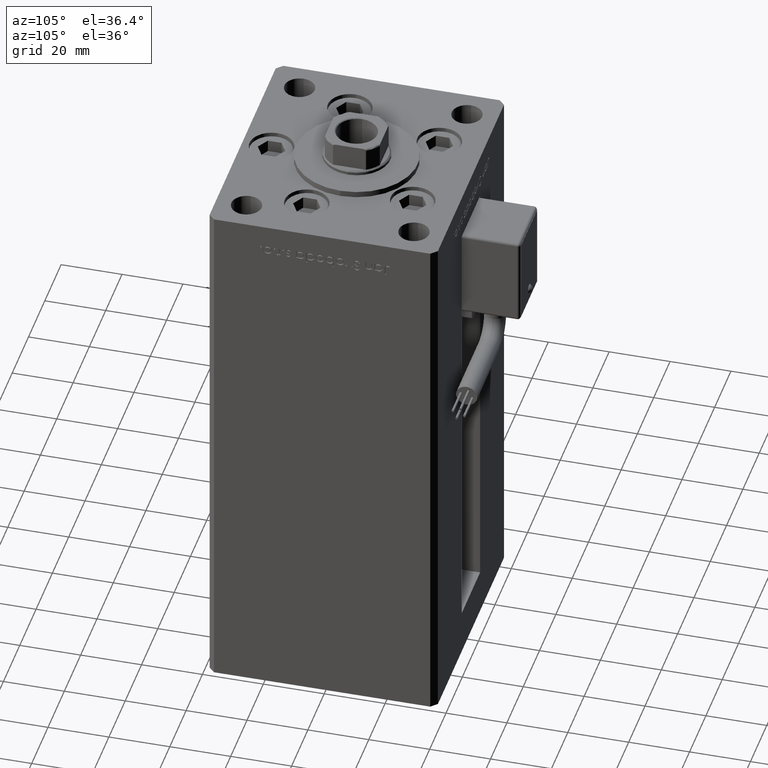
[diagram: clean part render]
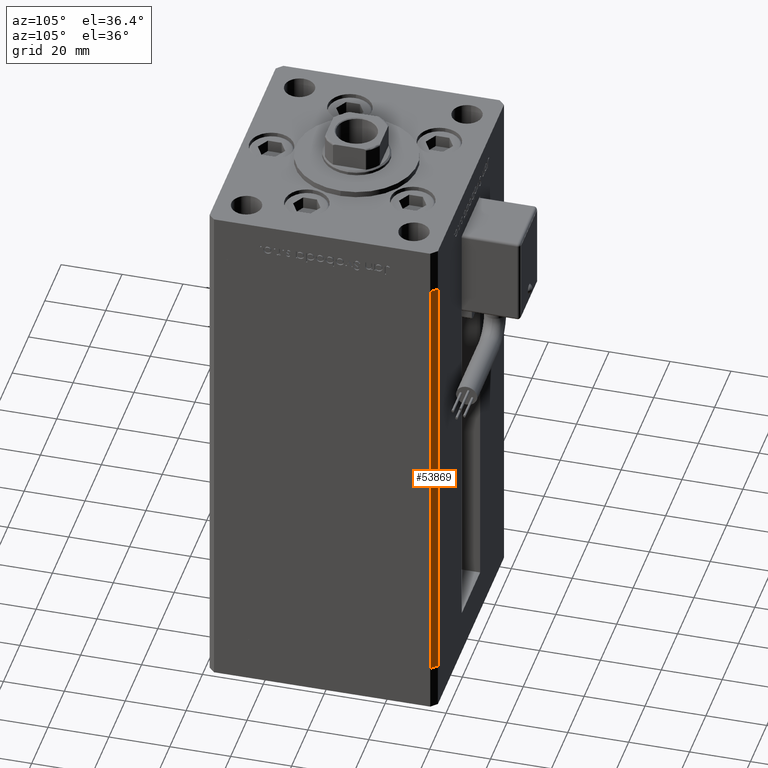
[diagram: same view with one face highlighted and labeled with its STEP entity id]
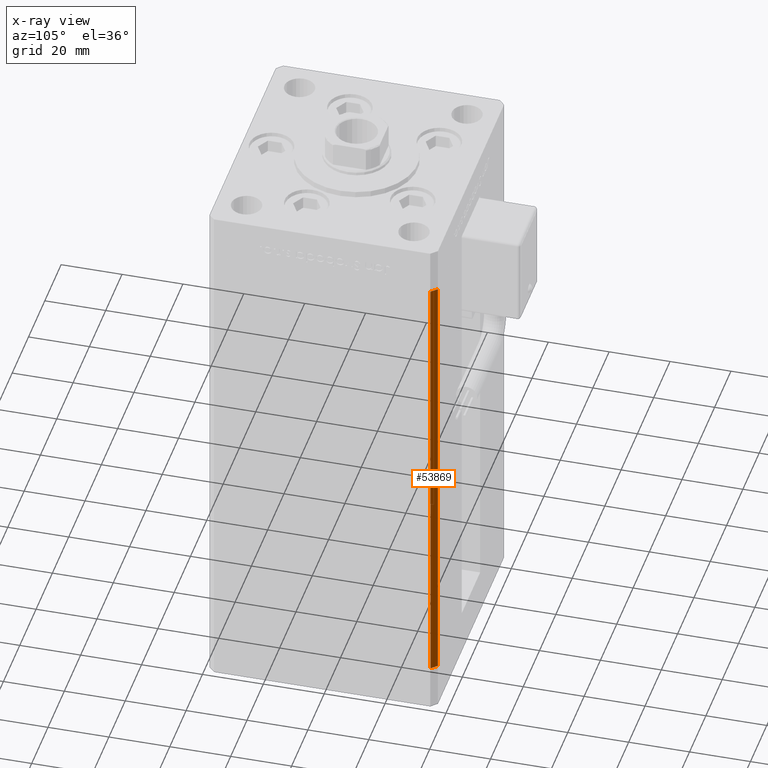
[diagram: x-ray of the same camera — body ghosted, the highlighted face saturated]
A machine part, auxiliary view. The second image highlights one B-rep face of the part: STEP entity #53869.
The next image is the same camera in x-ray: the body ghosted, the highlighted face saturated — about 0% of this face is hidden behind the body in this view.
In plain terms, the highlighted planar face has unit normal (0.7071, 0.7071, 0).
Its self-contained STEP definition (entity closure, byte-faithful):
#1923 = DIRECTION ( 'NONE',  ( 0.7071067811865500152, -0.7071067811865451302, 0.000000000000000000 ) ) ;
#3539 = FACE_OUTER_BOUND ( 'NONE', #43340, .T. ) ;
#3912 = ORIENTED_EDGE ( 'NONE', *, *, #54478, .T. ) ;
#4219 = CARTESIAN_POINT ( 'NONE',  ( 40.50000000000000000, 37.50000000000000711, 148.5000000000000000 ) ) ;
#7592 = CARTESIAN_POINT ( 'NONE',  ( 40.50000000000000000, 37.50000000000000711, 148.5000000000000000 ) ) ;
#11135 = ORIENTED_EDGE ( 'NONE', *, *, #12109, .F. ) ;
#11280 = DIRECTION ( 'NONE',  ( -0.000000000000000000, -0.000000000000000000, -1.000000000000000000 ) ) ;
#12109 = EDGE_CURVE ( 'NONE', #52536, #25490, #19099, .T. ) ;
#12866 = LINE ( 'NONE', #50219, #36794 ) ;
#16389 = CARTESIAN_POINT ( 'NONE',  ( 40.50000000000000000, 37.50000000000000711, 148.5000000000000000 ) ) ;
#19099 = LINE ( 'NONE', #7592, #53923 ) ;
#19746 = DIRECTION ( 'NONE',  ( 0.7071067811865451302, 0.7071067811865500152, -0.000000000000000000 ) ) ;
#21236 = VERTEX_POINT ( 'NONE', #52958 ) ;
#21507 = CARTESIAN_POINT ( 'NONE',  ( 42.50000000000000711, 35.50000000000001421, 148.5000000000000000 ) ) ;
#24213 = DIRECTION ( 'NONE',  ( -0.7071067811865500152, 0.7071067811865451302, 0.000000000000000000 ) ) ;
#25490 = VERTEX_POINT ( 'NONE', #54117 ) ;
#32186 = LINE ( 'NONE', #36665, #50892 ) ;
#34129 = AXIS2_PLACEMENT_3D ( 'NONE', #16389, #19746, #24213 ) ;
#36665 = CARTESIAN_POINT ( 'NONE',  ( 42.50000000000000711, 35.50000000000001421, 148.5000000000000000 ) ) ;
#36794 = VECTOR ( 'NONE', #50499, 1000.000000000000114 ) ;
#41033 = EDGE_CURVE ( 'NONE', #25490, #21236, #44079, .T. ) ;
#43340 = EDGE_LOOP ( 'NONE', ( #52843, #11135, #3912, #50016 ) ) ;
#44079 = LINE ( 'NONE', #48257, #51660 ) ;
#45020 = EDGE_CURVE ( 'NONE', #46332, #21236, #32186, .T. ) ;
#46332 = VERTEX_POINT ( 'NONE', #21507 ) ;
#48257 = CARTESIAN_POINT ( 'NONE',  ( 40.50000000000000000, 37.50000000000000711, 0.000000000000000000 ) ) ;
#50016 = ORIENTED_EDGE ( 'NONE', *, *, #45020, .T. ) ;
#50219 = CARTESIAN_POINT ( 'NONE',  ( 40.50000000000000000, 37.50000000000000711, 148.5000000000000000 ) ) ;
#50424 = PLANE ( 'NONE',  #34129 ) ;
#50499 = DIRECTION ( 'NONE',  ( 0.7071067811865500152, -0.7071067811865451302, 0.000000000000000000 ) ) ;
#50892 = VECTOR ( 'NONE', #11280, 1000.000000000000000 ) ;
#51660 = VECTOR ( 'NONE', #1923, 1000.000000000000114 ) ;
#52536 = VERTEX_POINT ( 'NONE', #4219 ) ;
#52843 = ORIENTED_EDGE ( 'NONE', *, *, #41033, .F. ) ;
#52958 = CARTESIAN_POINT ( 'NONE',  ( 42.50000000000000711, 35.50000000000001421, 0.000000000000000000 ) ) ;
#53869 = ADVANCED_FACE ( 'NONE', ( #3539 ), #50424, .T. ) ;
#53923 = VECTOR ( 'NONE', #54727, 1000.000000000000000 ) ;
#54117 = CARTESIAN_POINT ( 'NONE',  ( 40.50000000000000000, 37.50000000000000711, 0.000000000000000000 ) ) ;
#54478 = EDGE_CURVE ( 'NONE', #52536, #46332, #12866, .T. ) ;
#54727 = DIRECTION ( 'NONE',  ( -0.000000000000000000, -0.000000000000000000, -1.000000000000000000 ) ) ;